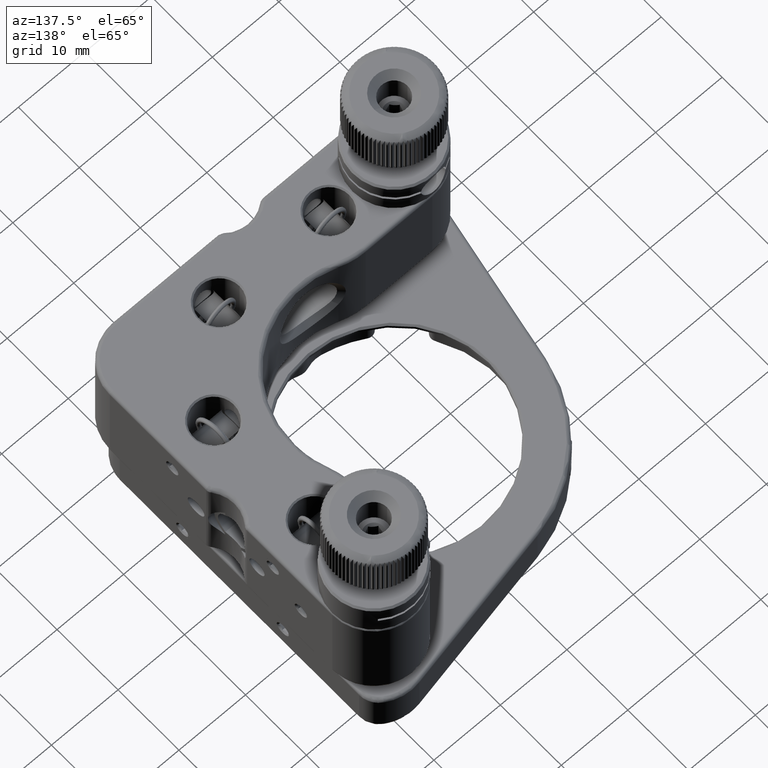
[diagram: clean part render]
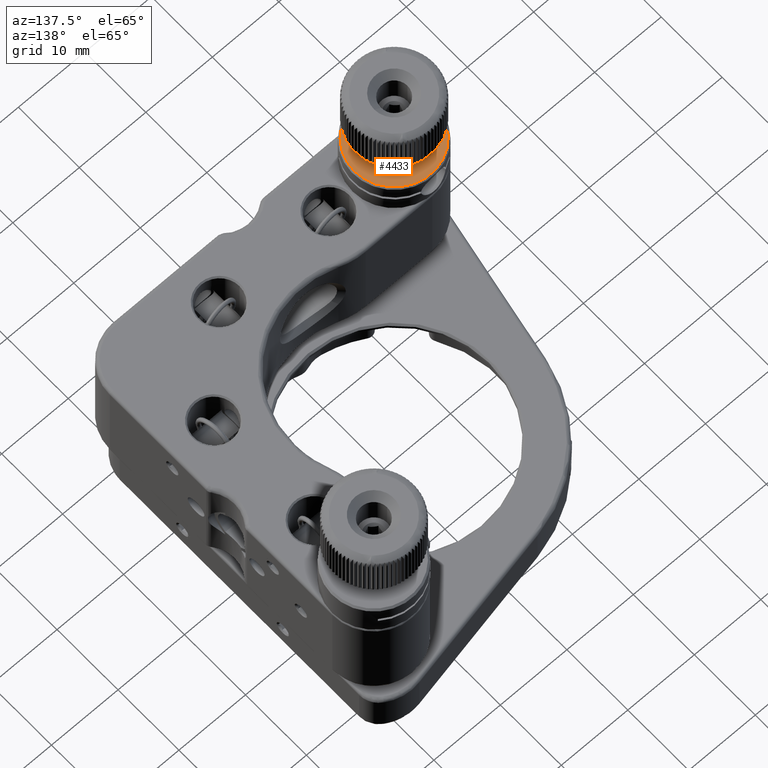
[diagram: same view with one face highlighted and labeled with its STEP entity id]
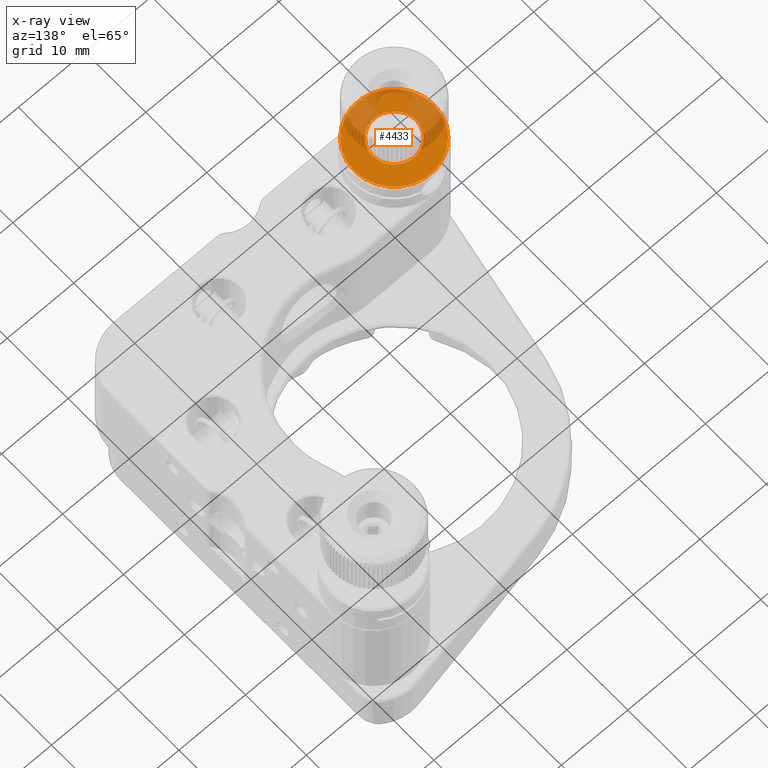
[diagram: x-ray of the same camera — body ghosted, the highlighted face saturated]
A machine part, auxiliary view. The second image highlights one B-rep face of the part: STEP entity #4433.
The next image is the same camera in x-ray: the body ghosted, the highlighted face saturated — about 42% of this face is hidden behind the body in this view.
In plain terms, the highlighted planar face has unit normal (0, 0, -1).
Its self-contained STEP definition (entity closure, byte-faithful):
#105 = ORIENTED_EDGE ( 'NONE', *, *, #53206, .F. ) ;
#3817 = DIRECTION ( 'NONE',  ( 0.000000000000000000, 0.000000000000000000, -1.000000000000000000 ) ) ;
#4433 = ADVANCED_FACE ( 'NONE', ( #12809, #21527 ), #17449, .F. ) ;
#6108 = CARTESIAN_POINT ( 'NONE',  ( -18.25000000000000000, -18.24999999999998934, 12.50000000000000000 ) ) ;
#6682 = DIRECTION ( 'NONE',  ( -1.000000000000000000, 0.000000000000000000, 0.000000000000000000 ) ) ;
#10311 = CARTESIAN_POINT ( 'NONE',  ( -21.49999999975085530, -18.25000000000000000, 12.50000000000000000 ) ) ;
#12809 = FACE_OUTER_BOUND ( 'NONE', #40585, .T. ) ;
#13263 = AXIS2_PLACEMENT_3D ( 'NONE', #16604, #38593, #29632 ) ;
#14671 = VERTEX_POINT ( 'NONE', #10311 ) ;
#16004 = AXIS2_PLACEMENT_3D ( 'NONE', #6108, #23819, #6682 ) ;
#16604 = CARTESIAN_POINT ( 'NONE',  ( -18.24999999999999645, -18.25000000000000000, 12.50000000000000000 ) ) ;
#17449 = PLANE ( 'NONE',  #54780 ) ;
#20184 = VERTEX_POINT ( 'NONE', #54647 ) ;
#21527 = FACE_BOUND ( 'NONE', #54908, .T. ) ;
#23819 = DIRECTION ( 'NONE',  ( 0.000000000000000000, -0.000000000000000000, 1.000000000000000000 ) ) ;
#29632 = DIRECTION ( 'NONE',  ( -1.000000000000000000, 0.000000000000000000, 0.000000000000000000 ) ) ;
#38251 = CIRCLE ( 'NONE', #13263, 3.249999999750858404 ) ;
#38593 = DIRECTION ( 'NONE',  ( -0.000000000000000000, -0.000000000000000000, 1.000000000000000000 ) ) ;
#40585 = EDGE_LOOP ( 'NONE', ( #56944 ) ) ;
#40967 = CIRCLE ( 'NONE', #16004, 5.999999999852342114 ) ;
#43799 = CARTESIAN_POINT ( 'NONE',  ( -23.80170136099999922, -24.80110524999999910, 12.50000000000000000 ) ) ;
#49345 = EDGE_CURVE ( 'NONE', #20184, #20184, #40967, .T. ) ;
#53206 = EDGE_CURVE ( 'NONE', #14671, #14671, #38251, .T. ) ;
#54647 = CARTESIAN_POINT ( 'NONE',  ( -24.24999999985234211, -18.24999999999998934, 12.50000000000000000 ) ) ;
#54780 = AXIS2_PLACEMENT_3D ( 'NONE', #43799, #3817, #56873 ) ;
#54908 = EDGE_LOOP ( 'NONE', ( #105 ) ) ;
#56873 = DIRECTION ( 'NONE',  ( -0.08229610416761164171, 0.9966079225246172735, 0.000000000000000000 ) ) ;
#56944 = ORIENTED_EDGE ( 'NONE', *, *, #49345, .T. ) ;